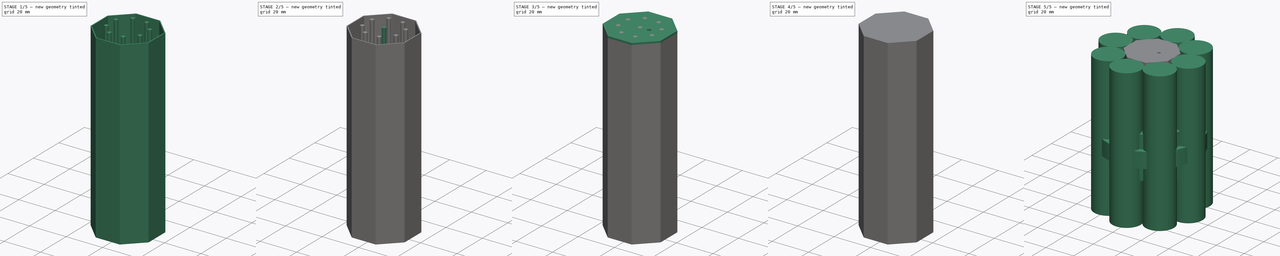
[diagram: build sequence overview — one tinted view per stage of 5, left to right]
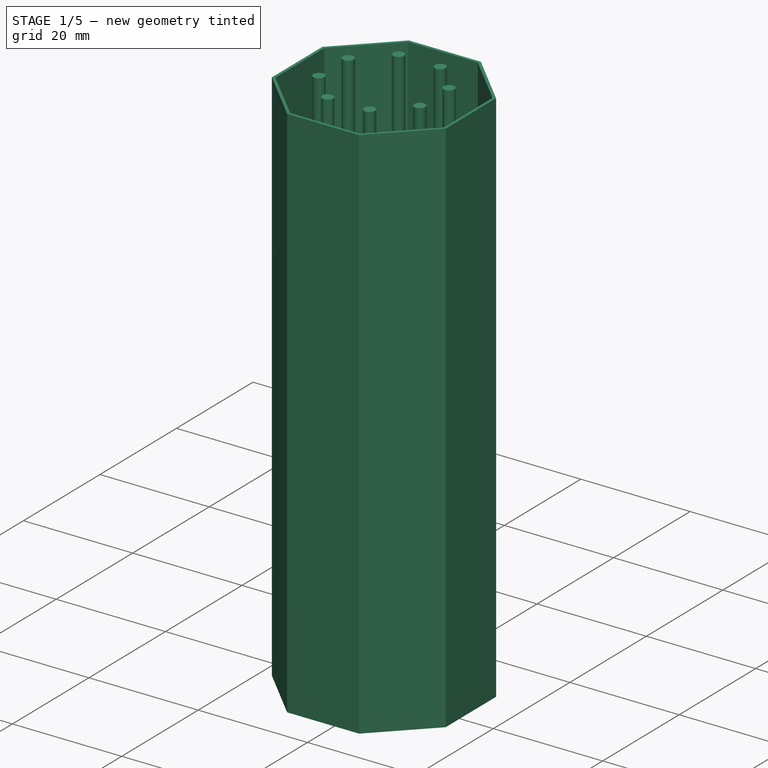
[diagram: stage 1 of 5 — iso view after this stage's code; geometry added in this stage tinted green]
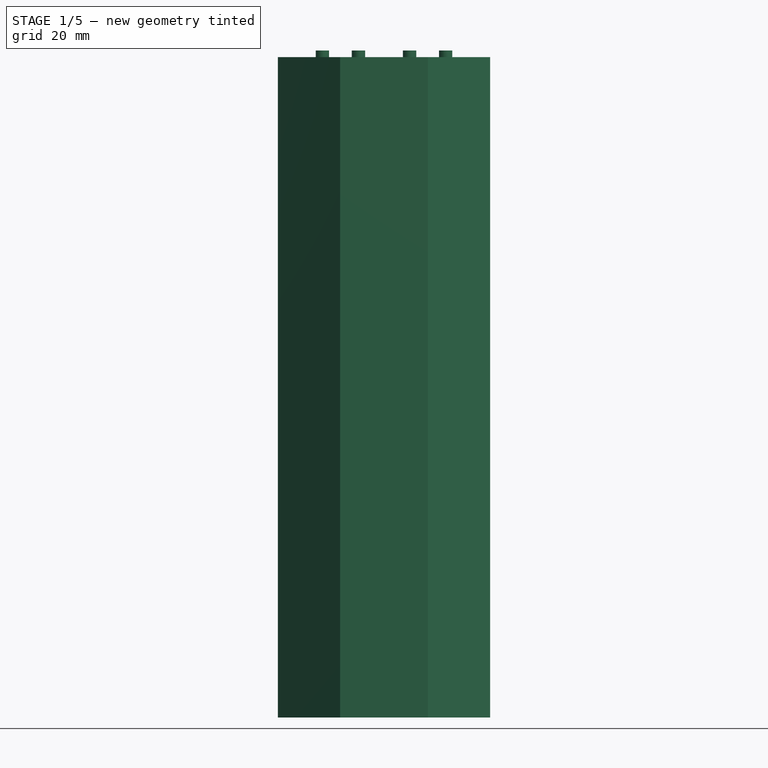
[diagram: stage 1 of 5 — front view after this stage's code; geometry added in this stage tinted green]
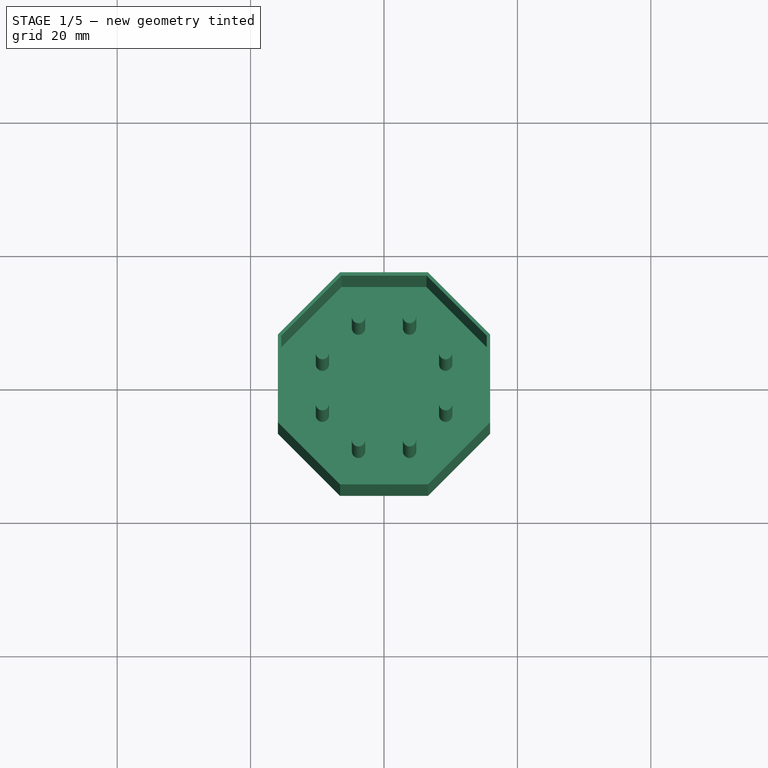
[diagram: stage 1 of 5 — top view after this stage's code; geometry added in this stage tinted green]
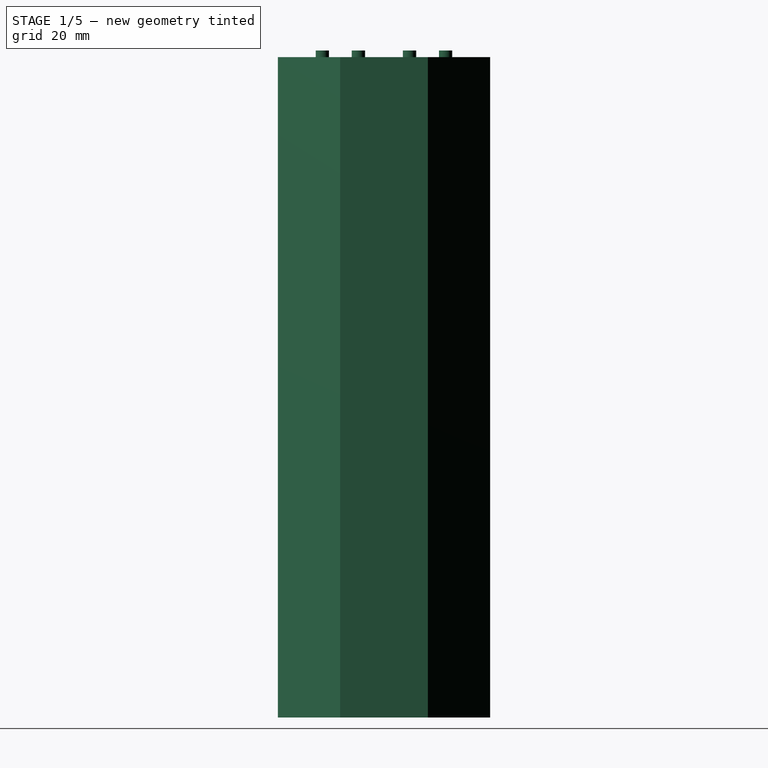
[diagram: stage 1 of 5 — right view after this stage's code; geometry added in this stage tinted green]
FCSTD DOCUMENT  (FreeCAD 0.18R4 (GitTag))
Label: cooler_stage_v0
License: All rights reserved
LicenseURL: http://en.wikipedia.org/wiki/All_rights_reserved
objects: Sketcher::SketchObject×11, PartDesign::Body×10, PartDesign::Pad×9, Part::MultiFuse×5, Part::FeaturePython×3, App::DocumentObjectGroup×3, Part::Feature×3, Spreadsheet::Sheet×1, PartDesign::Revolution×1, PartDesign::Pocket×1
note: 54 computed .brp shape members not serialized (recipe doc carries the construction recipe); baked Part::Feature solids carry a one-line shape summary decoded from their .brp

FEATURE [Sketcher::SketchObject] Sketch003
  MapMode = 5
  expr: Constraints[24] = spread.cooling_out_d - spread.cooling_tube_d * 3 / 2 - spread.tolerance
  sketch-geometry (18):
    g0: LineSegment StartX=15.9 StartY=6.586 StartZ=0 EndX=6.586 EndY=15.9 EndZ=0
    g1: LineSegment StartX=6.586 StartY=15.9 StartZ=0 EndX=-6.586 EndY=15.9 EndZ=0
    g2: LineSegment StartX=-6.586 StartY=15.9 StartZ=0 EndX=-15.9 EndY=6.586 EndZ=0
    g3: LineSegment StartX=-15.9 StartY=6.586 StartZ=0 EndX=-15.9 EndY=-6.586 EndZ=0
    g4: LineSegment StartX=-15.9 StartY=-6.586 StartZ=0 EndX=-6.586 EndY=-15.9 EndZ=0
    g5: LineSegment StartX=-6.586 StartY=-15.9 StartZ=0 EndX=6.586 EndY=-15.9 EndZ=0
    g6: LineSegment StartX=6.586 StartY=-15.9 StartZ=0 EndX=15.9 EndY=-6.586 EndZ=0
    g7: LineSegment StartX=15.9 StartY=-6.586 StartZ=0 EndX=15.9 EndY=6.586 EndZ=0
    g8: Circle [constr] CenterX=0 CenterY=0 CenterZ=0 NormalX=0 NormalY=0 NormalZ=1 AngleXU=0 Radius=17.21
    g9: LineSegment StartX=15.4 StartY=6.37889 StartZ=0 EndX=6.37889 EndY=15.4 EndZ=0
    g10: LineSegment StartX=6.37889 StartY=15.4 StartZ=0 EndX=-6.37889 EndY=15.4 EndZ=0
    g11: LineSegment StartX=-6.37889 StartY=15.4 StartZ=0 EndX=-15.4 EndY=6.37889 EndZ=0
    g12: LineSegment StartX=-15.4 StartY=6.37889 StartZ=0 EndX=-15.4 EndY=-6.37889 EndZ=0
    g13: LineSegment StartX=-15.4 StartY=-6.37889 StartZ=0 EndX=-6.37889 EndY=-15.4 EndZ=0
    g14: LineSegment StartX=-6.37889 StartY=-15.4 StartZ=0 EndX=6.37889 EndY=-15.4 EndZ=0
    g15: LineSegment StartX=6.37889 StartY=-15.4 StartZ=0 EndX=15.4 EndY=-6.37889 EndZ=0
    g16: LineSegment StartX=15.4 StartY=-6.37889 StartZ=0 EndX=15.4 EndY=6.37889 EndZ=0
    g17: Circle [constr] CenterX=0 CenterY=0 CenterZ=0 NormalX=0 NormalY=0 NormalZ=1 AngleXU=0 Radius=16.6688
  constraints (40):
    c: Coincident(g0,g1)
    c: Coincident(g1,g2)
    c: Coincident(g2,g3)
    c: Coincident(g3,g4)
    c: Coincident(g4,g5)
    c: Coincident(g5,g6)
    c: Coincident(g6,g7)
    c: Coincident(g7,g0)
    c: Equal(g0, g1-g7) x7
    c: PointOnObject(g0,g8)
    c: PointOnObject(g1,g8)
    c: PointOnObject(g2,g8)
    c: PointOnObject(g3,g8)
    c: PointOnObject(g4,g8)
    c: PointOnObject(g5,g8)
    c: PointOnObject(g6,g8)
    c: PointOnObject(g7,g8)
    c: Coincident(g8,g-1)
    c: DistanceX(g2,g0) = 31.8
    c: Horizontal(g1)
    c: Coincident(g9,g10)
    c: Coincident(g10,g11)
    c: Coincident(g11,g12)
    c: Coincident(g12,g13)
    c: Coincident(g13,g14)
    c: Coincident(g14,g15)
    c: Coincident(g15,g16)
    c: Coincident(g16,g9)
    c: Equal(g9, g10-g16) x7
    c: PointOnObject(g9,g17)
    c: PointOnObject(g10,g17)
    c: PointOnObject(g11,g17)
    c: PointOnObject(g12,g17)
    c: PointOnObject(g13,g17)
    c: PointOnObject(g14,g17)
    c: PointOnObject(g15,g17)
    c: PointOnObject(g16,g17)
    c: Coincident(g17,g-1)
    c: Horizontal(g10)
    c: DistanceX(g9,g0) = 0.5
FEATURE [PartDesign::Pad] Pad002
  Length = 98
  Length2 = 100
  Profile = -> Sketch003
  Type = 0
  expr: Length = spread.cooling_tube_h - 2 * spread.cooler_walls
FEATURE [PartDesign::Body] Body003  label="cooler_container"
  Group = -> [Sketch003,Pad002]
  Placement = pos=(0,0,1) rot=(0,0,1;0rad)
  Tip = -> Pad002
  expr: Placement.Base.z = spread.cooler_walls
FEATURE [Sketcher::SketchObject] Sketch004
  MapMode = 5
  Support = -> [XY_Plane005]
  expr: Constraints[24] = spread.cooling_out_d - spread.cooling_tube_d * 3 / 2 - spread.tolerance
  sketch-geometry (10):
    g0: LineSegment StartX=15.9 StartY=6.586 StartZ=0 EndX=6.586 EndY=15.9 EndZ=0
    g1: LineSegment StartX=6.586 StartY=15.9 StartZ=0 EndX=-6.586 EndY=15.9 EndZ=0
    g2: LineSegment StartX=-6.586 StartY=15.9 StartZ=0 EndX=-15.9 EndY=6.586 EndZ=0
    g3: LineSegment StartX=-15.9 StartY=6.586 StartZ=0 EndX=-15.9 EndY=-6.586 EndZ=0
    g4: LineSegment StartX=-15.9 StartY=-6.586 StartZ=0 EndX=-6.586 EndY=-15.9 EndZ=0
    g5: LineSegment StartX=-6.586 StartY=-15.9 StartZ=0 EndX=6.586 EndY=-15.9 EndZ=0
    g6: LineSegment StartX=6.586 StartY=-15.9 StartZ=0 EndX=15.9 EndY=-6.586 EndZ=0
    g7: LineSegment StartX=15.9 StartY=-6.586 StartZ=0 EndX=15.9 EndY=6.586 EndZ=0
    g8: Circle [constr] CenterX=0 CenterY=0 CenterZ=0 NormalX=0 NormalY=0 NormalZ=1 AngleXU=0 Radius=17.21
    g9: Circle [constr] CenterX=0 CenterY=0 CenterZ=0 NormalX=0 NormalY=0 NormalZ=1 AngleXU=0 Radius=16.6688
  constraints (21):
    c: Coincident(g0,g1)
    c: Coincident(g1,g2)
    c: Coincident(g2,g3)
    c: Coincident(g3,g4)
    c: Coincident(g4,g5)
    c: Coincident(g5,g6)
    c: Coincident(g6,g7)
    c: Coincident(g7,g0)
    c: Equal(g0, g1-g7) x7
    c: PointOnObject(g0,g8)
    c: PointOnObject(g1,g8)
    c: PointOnObject(g2,g8)
    c: PointOnObject(g3,g8)
    c: PointOnObject(g4,g8)
    c: PointOnObject(g5,g8)
    c: PointOnObject(g6,g8)
    c: PointOnObject(g7,g8)
    c: Coincident(g8,g-1)
    c: DistanceX(g2,g0) = 31.8
    c: Horizontal(g1)
    c: Coincident(g9,g-1)
FEATURE [PartDesign::Pad] Pad003
  Length = 1
  Length2 = 100
  Profile = -> Sketch004
  Type = 0
  expr: Length = spread001.cooler_walls
FEATURE [PartDesign::Body] Body010  label="pillars"
  Group = -> [Sketch009,Pad008]
  Origin = -> Origin009
  Tip = -> Pad008
FEATURE [Part::FeaturePython] Array002  # Draft array (typed FeaturePython)
  Angle = 360
  ArrayType = 1
  Axis = (0,0,1)
  Center = (0,0,0)
  Fuse = false
  IntervalAxis = (0,0,0)
  IntervalX = (1,0,0)
  IntervalY = (0,1,0)
  IntervalZ = (0,0,1)
  NumberPolar = 8
  NumberX = 2
  NumberY = 2
  NumberZ = 1
  Placement = pos=(0,0,0) rot=(0,0,1;0.392699rad)
  expr: Placement.Rotation.Angle = 45 / 2
FEATURE [PartDesign::Body] Body006  label="cooler_container_lid_up"
  Group = -> [Sketch005,Pad004,Sketch010,Pocket]
  Origin = -> Origin006
  Placement = pos=(0,0,99) rot=(0,0,1;0rad)
  Tip = -> Pocket
  expr: Placement.Base.z = spread.cooling_tube_h - spread.cooler_walls
FEATURE [Part::MultiFuse] Fusion002
  Shapes = -> [Body005,Body003]
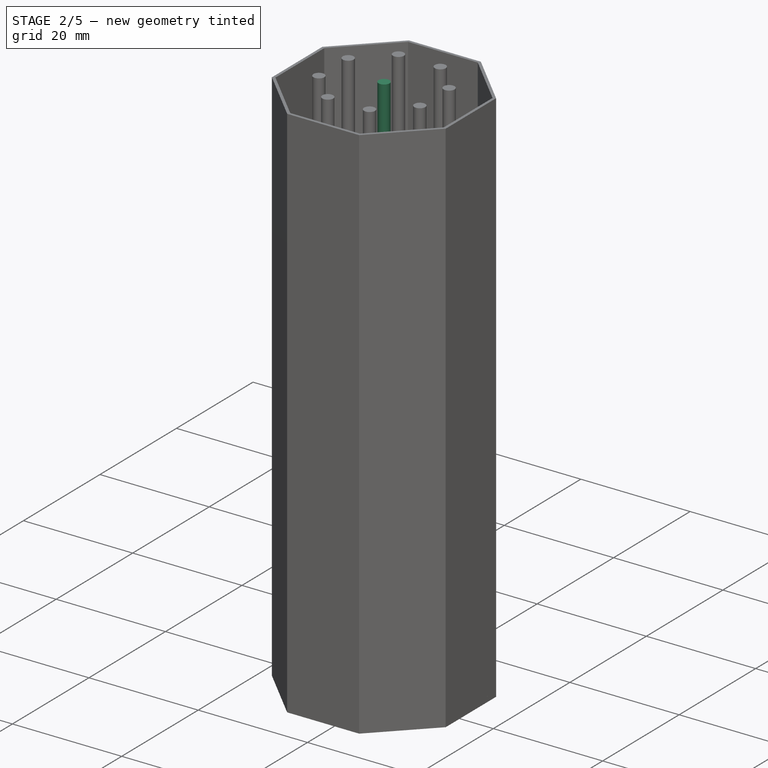
[diagram: stage 2 of 5 — iso view after this stage's code; geometry added in this stage tinted green]
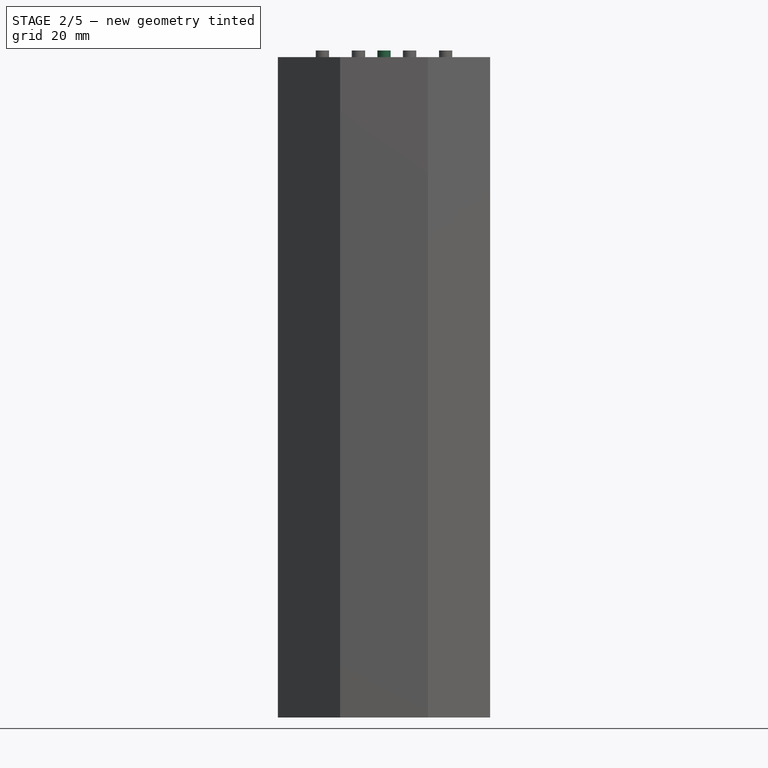
[diagram: stage 2 of 5 — front view after this stage's code; geometry added in this stage tinted green]
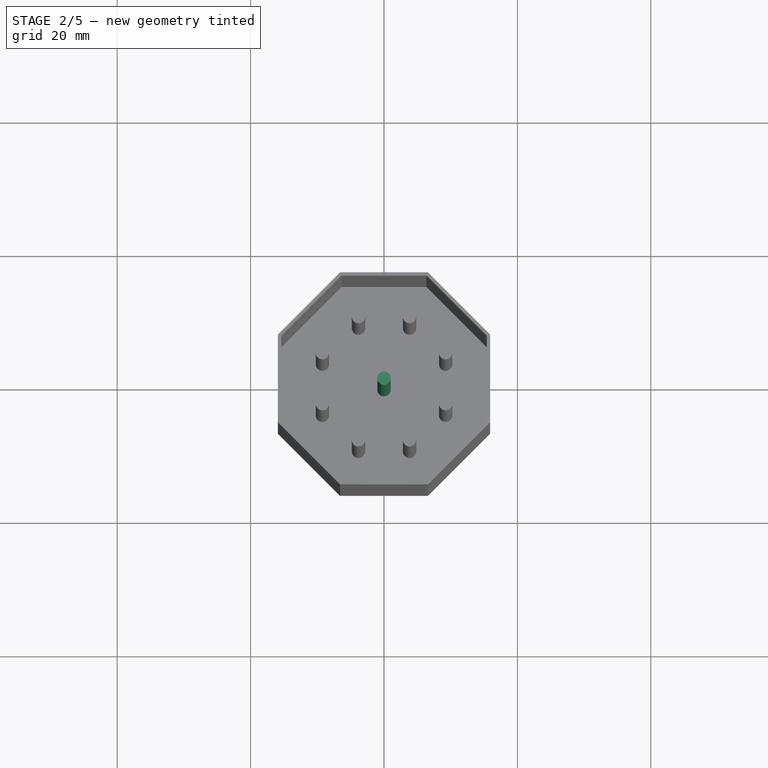
[diagram: stage 2 of 5 — top view after this stage's code; geometry added in this stage tinted green]
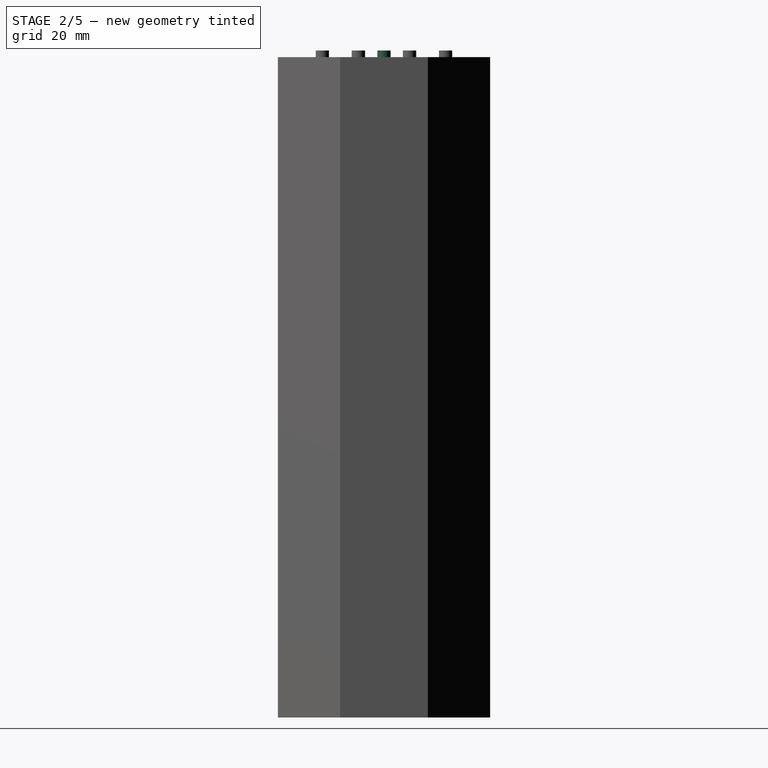
[diagram: stage 2 of 5 — right view after this stage's code; geometry added in this stage tinted green]
FEATURE [PartDesign::Body] Body005  label="cooler_container_lid"
  Group = -> [Sketch004,Pad003]
  Origin = -> Origin005
  Tip = -> Pad003
FEATURE [Sketcher::SketchObject] Sketch005
  MapMode = 5
  Support = -> [XY_Plane006]
  expr: Constraints[24] = spread.cooling_out_d - spread.cooling_tube_d * 3 / 2 - spread.tolerance
  sketch-geometry (10):
    g0: LineSegment StartX=15.9 StartY=6.586 StartZ=0 EndX=6.586 EndY=15.9 EndZ=0
    g1: LineSegment StartX=6.586 StartY=15.9 StartZ=0 EndX=-6.586 EndY=15.9 EndZ=0
    g2: LineSegment StartX=-6.586 StartY=15.9 StartZ=0 EndX=-15.9 EndY=6.586 EndZ=0
    g3: LineSegment StartX=-15.9 StartY=6.586 StartZ=0 EndX=-15.9 EndY=-6.586 EndZ=0
    g4: LineSegment StartX=-15.9 StartY=-6.586 StartZ=0 EndX=-6.586 EndY=-15.9 EndZ=0
    g5: LineSegment StartX=-6.586 StartY=-15.9 StartZ=0 EndX=6.586 EndY=-15.9 EndZ=0
    g6: LineSegment StartX=6.586 StartY=-15.9 StartZ=0 EndX=15.9 EndY=-6.586 EndZ=0
    g7: LineSegment StartX=15.9 StartY=-6.586 StartZ=0 EndX=15.9 EndY=6.586 EndZ=0
    g8: Circle [constr] CenterX=0 CenterY=0 CenterZ=0 NormalX=0 NormalY=0 NormalZ=1 AngleXU=0 Radius=17.21
    g9: Circle [constr] CenterX=0 CenterY=0 CenterZ=0 NormalX=0 NormalY=0 NormalZ=1 AngleXU=0 Radius=16.6688
  constraints (21):
    c: Coincident(g0,g1)
    c: Coincident(g1,g2)
    c: Coincident(g2,g3)
    c: Coincident(g3,g4)
    c: Coincident(g4,g5)
    c: Coincident(g5,g6)
    c: Coincident(g6,g7)
    c: Coincident(g7,g0)
    c: Equal(g0, g1-g7) x7
    c: PointOnObject(g0,g8)
    c: PointOnObject(g1,g8)
    c: PointOnObject(g2,g8)
    c: PointOnObject(g3,g8)
    c: PointOnObject(g4,g8)
    c: PointOnObject(g5,g8)
    c: PointOnObject(g6,g8)
    c: PointOnObject(g7,g8)
    c: Coincident(g8,g-1)
    c: DistanceX(g2,g0) = 31.8
    c: Horizontal(g1)
    c: Coincident(g9,g-1)
FEATURE [PartDesign::Pad] Pad004
  Length = 1
  Length2 = 100
  Profile = -> Sketch005
  Type = 0
  expr: Length = spread.cooler_walls
FEATURE [App::DocumentObjectGroup] Group001  label="cooler_open"
  Group = -> [Body009,Fusion]
FEATURE [Sketcher::SketchObject] Sketch009
  MapMode = 5
  Support = -> [XY_Plane009]
  sketch-geometry (2):
    g0: Circle CenterX=0 CenterY=0 CenterZ=0 NormalX=0 NormalY=0 NormalZ=1 AngleXU=0 Radius=1
    g1: GeomPoint X=0 Y=0 Z=0
  constraints (3):
    c: Diameter(g0) = 2
    c: Coincident(g0,g-1)
    c: Coincident(g1,g-1)
FEATURE [PartDesign::Pad] Pad008
  Length = 100
  Length2 = 100
  Profile = -> Sketch009
  Type = 0
  expr: Length = spread003.cooling_tube_h
FEATURE [Part::MultiFuse] Fusion001  label="pillars001"
  Shapes = -> [Body010,Array002]
FEATURE [Part::MultiFuse] Fusion003
  Shapes = -> [Fusion002,Fusion001]
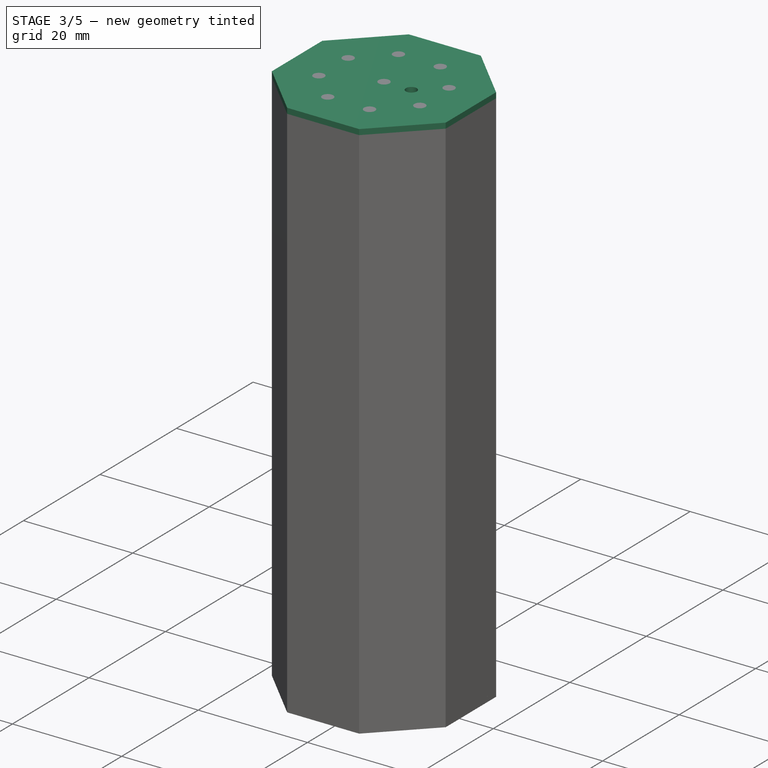
[diagram: stage 3 of 5 — iso view after this stage's code; geometry added in this stage tinted green]
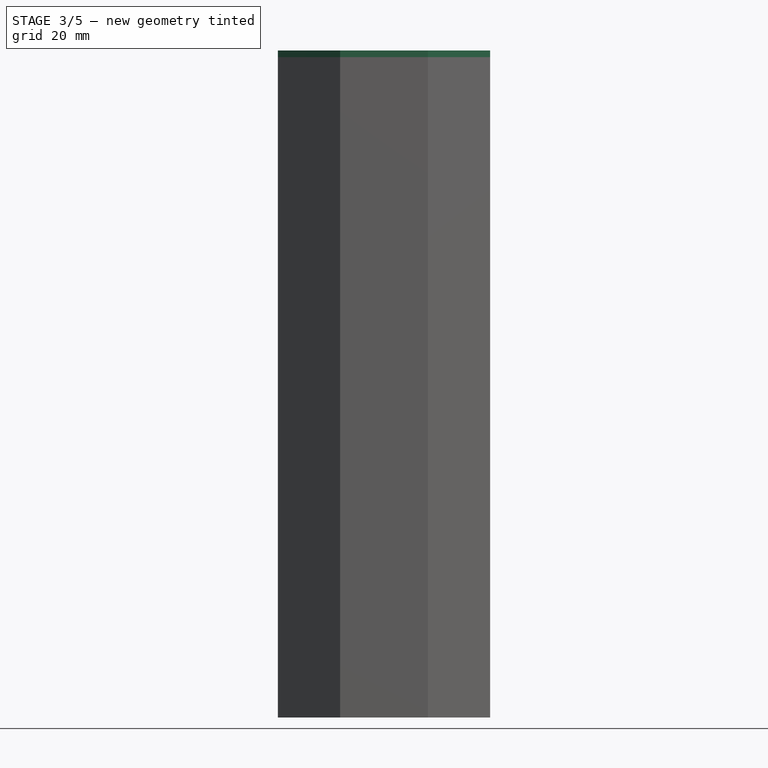
[diagram: stage 3 of 5 — front view after this stage's code; geometry added in this stage tinted green]
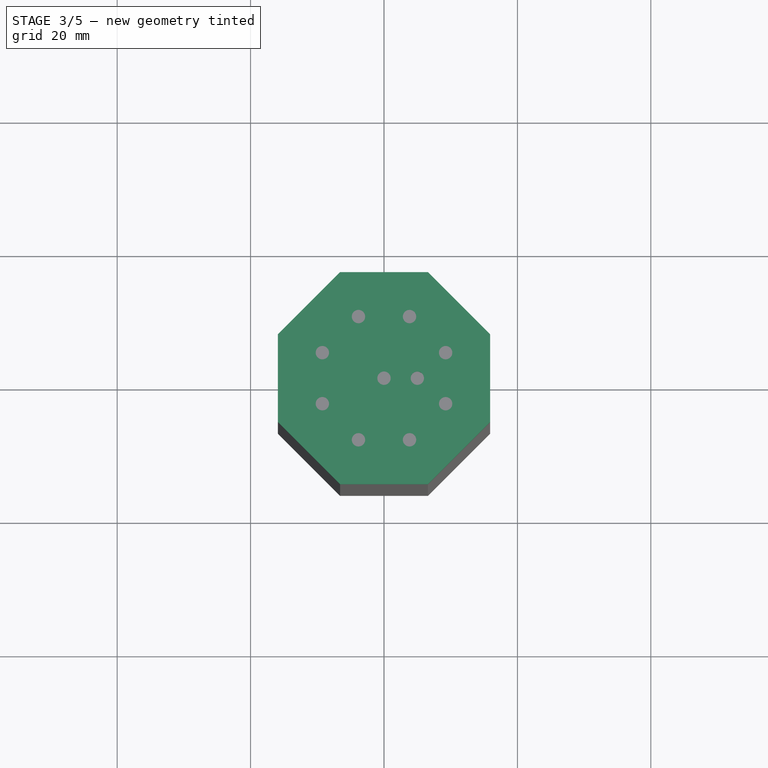
[diagram: stage 3 of 5 — top view after this stage's code; geometry added in this stage tinted green]
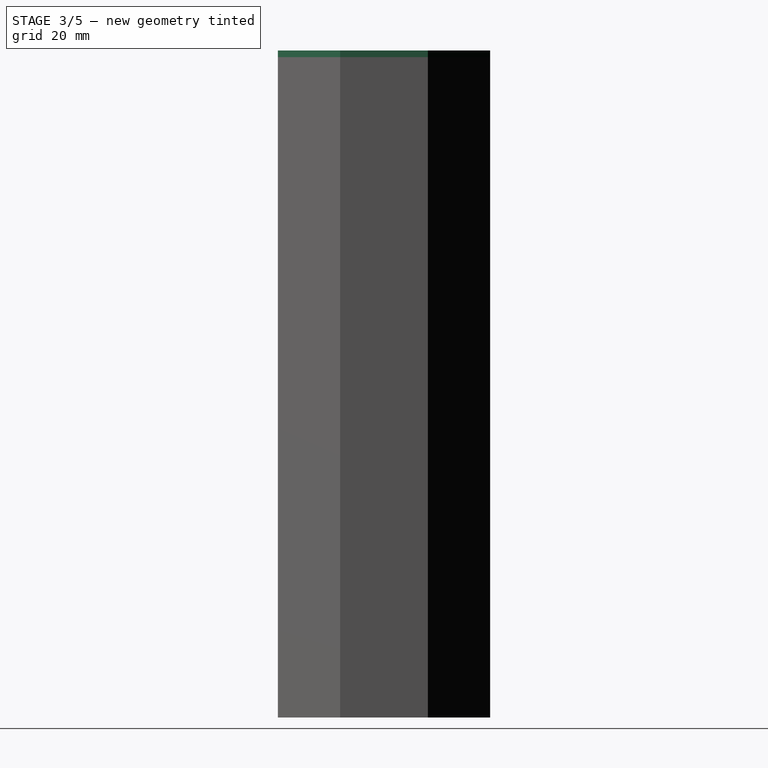
[diagram: stage 3 of 5 — right view after this stage's code; geometry added in this stage tinted green]
FEATURE [PartDesign::Body] Body007  label="cooler_container001"
  Group = -> [Sketch006,Pad005]
  Placement = pos=(0,0,1) rot=(0,0,1;0rad)
  Tip = -> Pad005
  expr: Placement.Base.z = spread.cooler_walls
FEATURE [Sketcher::SketchObject] Sketch007
  MapMode = 5
  Support = -> [XY_Plane007]
  expr: Constraints[24] = spread.cooling_out_d - spread.cooling_tube_d * 3 / 2 - spread.tolerance
  sketch-geometry (10):
    g0: LineSegment StartX=15.9 StartY=6.586 StartZ=0 EndX=6.586 EndY=15.9 EndZ=0
    g1: LineSegment StartX=6.586 StartY=15.9 StartZ=0 EndX=-6.586 EndY=15.9 EndZ=0
    g2: LineSegment StartX=-6.586 StartY=15.9 StartZ=0 EndX=-15.9 EndY=6.586 EndZ=0
    g3: LineSegment StartX=-15.9 StartY=6.586 StartZ=0 EndX=-15.9 EndY=-6.586 EndZ=0
    g4: LineSegment StartX=-15.9 StartY=-6.586 StartZ=0 EndX=-6.586 EndY=-15.9 EndZ=0
    g5: LineSegment StartX=-6.586 StartY=-15.9 StartZ=0 EndX=6.586 EndY=-15.9 EndZ=0
    g6: LineSegment StartX=6.586 StartY=-15.9 StartZ=0 EndX=15.9 EndY=-6.586 EndZ=0
    g7: LineSegment StartX=15.9 StartY=-6.586 StartZ=0 EndX=15.9 EndY=6.586 EndZ=0
    g8: Circle [constr] CenterX=0 CenterY=0 CenterZ=0 NormalX=0 NormalY=0 NormalZ=1 AngleXU=0 Radius=17.21
    g9: Circle [constr] CenterX=0 CenterY=0 CenterZ=0 NormalX=0 NormalY=0 NormalZ=1 AngleXU=0 Radius=16.6688
  constraints (21):
    c: Coincident(g0,g1)
    c: Coincident(g1,g2)
    c: Coincident(g2,g3)
    c: Coincident(g3,g4)
    c: Coincident(g4,g5)
    c: Coincident(g5,g6)
    c: Coincident(g6,g7)
    c: Coincident(g7,g0)
    c: Equal(g0, g1-g7) x7
    c: PointOnObject(g0,g8)
    c: PointOnObject(g1,g8)
    c: PointOnObject(g2,g8)
    c: PointOnObject(g3,g8)
    c: PointOnObject(g4,g8)
    c: PointOnObject(g5,g8)
    c: PointOnObject(g6,g8)
    c: PointOnObject(g7,g8)
    c: Coincident(g8,g-1)
    c: DistanceX(g2,g0) = 31.8
    c: Horizontal(g1)
    c: Coincident(g9,g-1)
FEATURE [PartDesign::Pad] Pad006
  Length = 1
  Length2 = 100
  Profile = -> Sketch007
  Type = 0
  expr: Length = spread003.cooler_walls
FEATURE [Sketcher::SketchObject] Sketch010
  MapMode = 5
  Placement = pos=(0,0,1) rot=(0,0,1;0rad)
  Support = -> [Pad004]
  sketch-geometry (1):
    g0: Circle CenterX=5 CenterY=0 CenterZ=0 NormalX=0 NormalY=0 NormalZ=1 AngleXU=0 Radius=1
  constraints (1):
    c: PointOnObject(g0,g-1)
FEATURE [PartDesign::Pocket] Pocket
  BaseFeature = -> Pad004
  Length = 5
  Length2 = 100
  Profile = -> Sketch010
  Type = 0
FEATURE [Part::MultiFuse] Fusion004  label="cooler_closed001"
  Shapes = -> [Fusion003,Body006]
FEATURE [App::DocumentObjectGroup] Group  label="cooler_closed"
  Group = -> [Fusion004]
FEATURE [Part::Feature] Fusion004001  label="cooler_closed002"
  shape: bbox 31.8 x 31.8 x 100 mm, 64 faces (baked)
FEATURE [Part::Feature] Body009001  label="cooler_container_lid_up002"
  Placement = pos=(0,0,99) rot=(0,0,1;0rad)
  shape: bbox 31.8 x 31.8 x 1 mm, 10 faces (baked)
FEATURE [Part::Feature] Fusion004002  label="cooler_walls_down001"
  shape: bbox 31.8 x 31.8 x 99 mm, 27 faces (baked)
FEATURE [App::DocumentObjectGroup] Group002  label="to_print"
  Group = -> [Fusion004002,Fusion004001,Body009001]
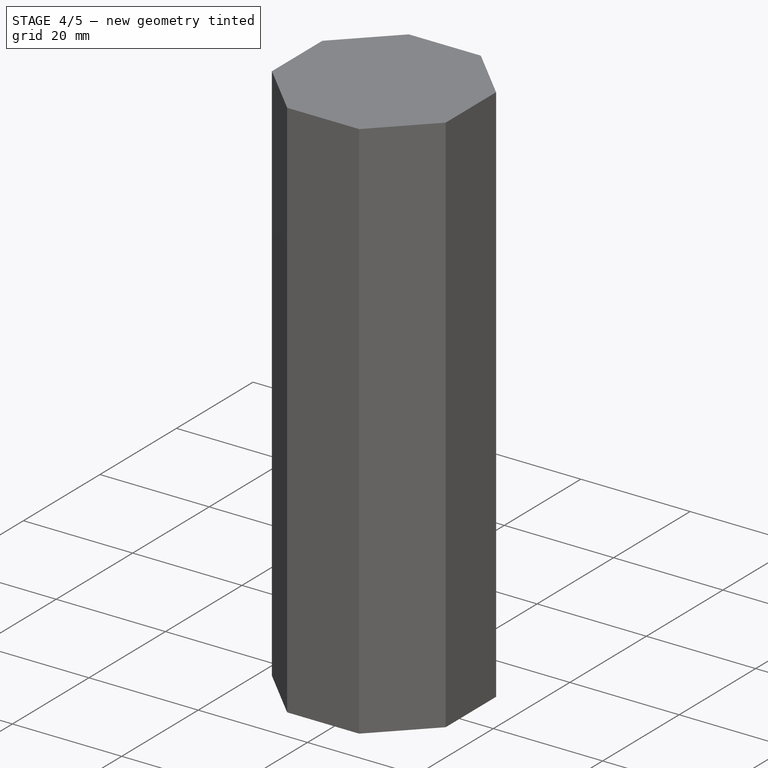
[diagram: stage 4 of 5 — iso view after this stage's code; geometry added in this stage tinted green]
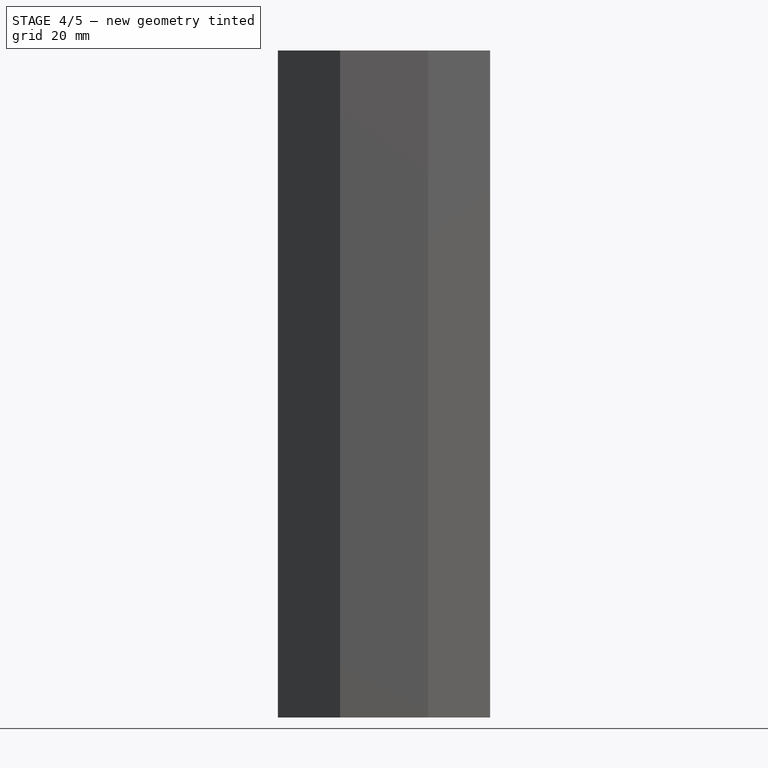
[diagram: stage 4 of 5 — front view after this stage's code; geometry added in this stage tinted green]
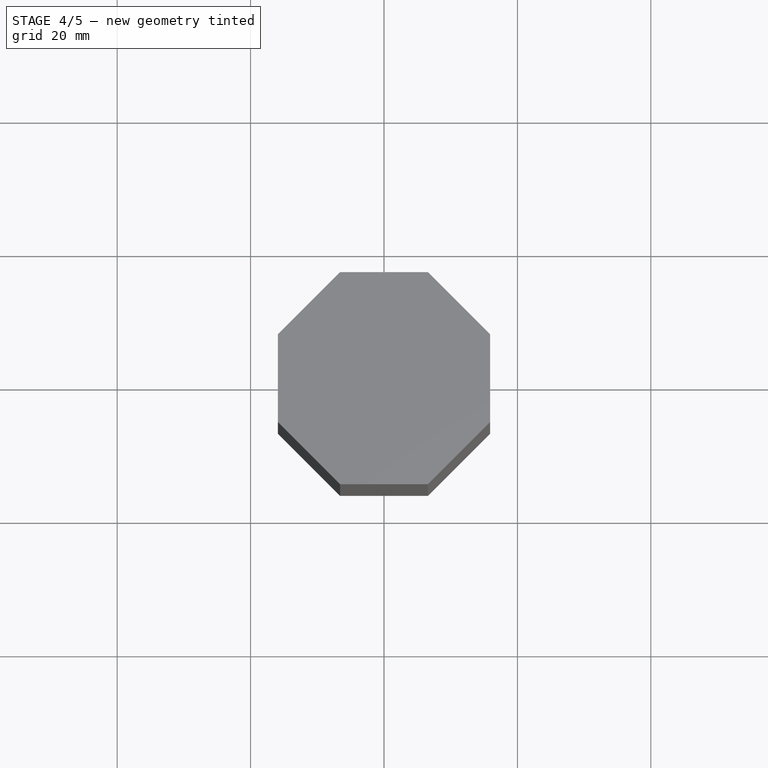
[diagram: stage 4 of 5 — top view after this stage's code; geometry added in this stage tinted green]
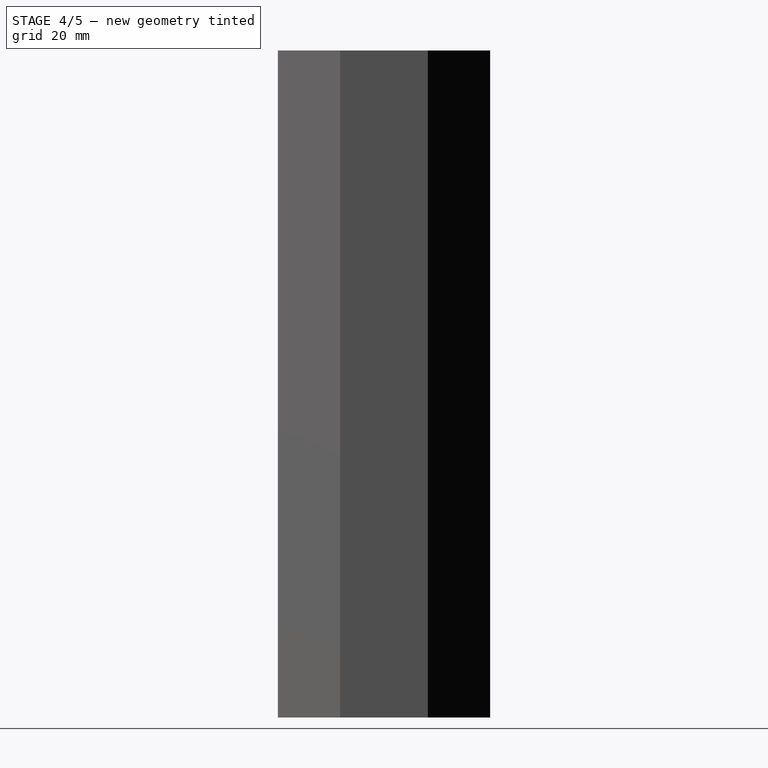
[diagram: stage 4 of 5 — right view after this stage's code; geometry added in this stage tinted green]
FEATURE [PartDesign::Body] Body001  label="Intersurgical"
  Group = -> [Sketch001,Revolution]
  Origin = -> Origin001
  Placement = pos=(0,0,163) rot=(1,0,0;3.14159rad)
  Tip = -> Revolution
FEATURE [Sketcher::SketchObject] Sketch002
  MapMode = 5
  Support = -> [XY_Plane004]
  expr: Constraints[1] = spread003.cooling_tube_d + spread003.tolerance
  sketch-geometry (1):
    g0: Circle CenterX=0 CenterY=0 CenterZ=0 NormalX=0 NormalY=0 NormalZ=1 AngleXU=0 Radius=10.1
  constraints (2):
    c: Coincident(g0,g-1)
    c: Diameter(g0) = 20.2
FEATURE [PartDesign::Pad] Pad001
  Length = 100
  Length2 = 100
  Profile = -> Sketch002
  Type = 0
  expr: Length = spread.cooling_tube_h
FEATURE [Sketcher::SketchObject] Sketch006
  MapMode = 5
  expr: Constraints[24] = spread.cooling_out_d - spread.cooling_tube_d * 3 / 2 - spread.tolerance
  sketch-geometry (18):
    g0: LineSegment StartX=15.9 StartY=6.586 StartZ=0 EndX=6.586 EndY=15.9 EndZ=0
    g1: LineSegment StartX=6.586 StartY=15.9 StartZ=0 EndX=-6.586 EndY=15.9 EndZ=0
    g2: LineSegment StartX=-6.586 StartY=15.9 StartZ=0 EndX=-15.9 EndY=6.586 EndZ=0
    g3: LineSegment StartX=-15.9 StartY=6.586 StartZ=0 EndX=-15.9 EndY=-6.586 EndZ=0
    g4: LineSegment StartX=-15.9 StartY=-6.586 StartZ=0 EndX=-6.586 EndY=-15.9 EndZ=0
    g5: LineSegment StartX=-6.586 StartY=-15.9 StartZ=0 EndX=6.586 EndY=-15.9 EndZ=0
    g6: LineSegment StartX=6.586 StartY=-15.9 StartZ=0 EndX=15.9 EndY=-6.586 EndZ=0
    g7: LineSegment StartX=15.9 StartY=-6.586 StartZ=0 EndX=15.9 EndY=6.586 EndZ=0
    g8: Circle [constr] CenterX=0 CenterY=0 CenterZ=0 NormalX=0 NormalY=0 NormalZ=1 AngleXU=0 Radius=17.21
    g9: LineSegment StartX=15.4 StartY=6.37889 StartZ=0 EndX=6.37889 EndY=15.4 EndZ=0
    g10: LineSegment StartX=6.37889 StartY=15.4 StartZ=0 EndX=-6.37889 EndY=15.4 EndZ=0
    g11: LineSegment StartX=-6.37889 StartY=15.4 StartZ=0 EndX=-15.4 EndY=6.37889 EndZ=0
    g12: LineSegment StartX=-15.4 StartY=6.37889 StartZ=0 EndX=-15.4 EndY=-6.37889 EndZ=0
    g13: LineSegment StartX=-15.4 StartY=-6.37889 StartZ=0 EndX=-6.37889 EndY=-15.4 EndZ=0
    g14: LineSegment StartX=-6.37889 StartY=-15.4 StartZ=0 EndX=6.37889 EndY=-15.4 EndZ=0
    g15: LineSegment StartX=6.37889 StartY=-15.4 StartZ=0 EndX=15.4 EndY=-6.37889 EndZ=0
    g16: LineSegment StartX=15.4 StartY=-6.37889 StartZ=0 EndX=15.4 EndY=6.37889 EndZ=0
    g17: Circle [constr] CenterX=0 CenterY=0 CenterZ=0 NormalX=0 NormalY=0 NormalZ=1 AngleXU=0 Radius=16.6688
  constraints (40):
    c: Coincident(g0,g1)
    c: Coincident(g1,g2)
    c: Coincident(g2,g3)
    c: Coincident(g3,g4)
    c: Coincident(g4,g5)
    c: Coincident(g5,g6)
    c: Coincident(g6,g7)
    c: Coincident(g7,g0)
    c: Equal(g0, g1-g7) x7
    c: PointOnObject(g0,g8)
    c: PointOnObject(g1,g8)
    c: PointOnObject(g2,g8)
    c: PointOnObject(g3,g8)
    c: PointOnObject(g4,g8)
    c: PointOnObject(g5,g8)
    c: PointOnObject(g6,g8)
    c: PointOnObject(g7,g8)
    c: Coincident(g8,g-1)
    c: DistanceX(g2,g0) = 31.8
    c: Horizontal(g1)
    c: Coincident(g9,g10)
    c: Coincident(g10,g11)
    c: Coincident(g11,g12)
    c: Coincident(g12,g13)
    c: Coincident(g13,g14)
    c: Coincident(g14,g15)
    c: Coincident(g15,g16)
    c: Coincident(g16,g9)
    c: Equal(g9, g10-g16) x7
    c: PointOnObject(g9,g17)
    c: PointOnObject(g10,g17)
    c: PointOnObject(g11,g17)
    c: PointOnObject(g12,g17)
    c: PointOnObject(g13,g17)
    c: PointOnObject(g14,g17)
    c: PointOnObject(g15,g17)
    c: PointOnObject(g16,g17)
    c: Coincident(g17,g-1)
    c: Horizontal(g10)
    c: DistanceX(g9,g0) = 0.5
FEATURE [PartDesign::Pad] Pad005
  Length = 98
  Length2 = 100
  Profile = -> Sketch006
  Type = 0
  expr: Length = spread.cooling_tube_h - 2 * spread.cooler_walls
FEATURE [PartDesign::Body] Body008  label="cooler_container_lid001"
  Group = -> [Sketch007,Pad006]
  Origin = -> Origin007
  Tip = -> Pad006
FEATURE [Sketcher::SketchObject] Sketch008
  MapMode = 5
  Support = -> [XY_Plane008]
  expr: Constraints[24] = spread.cooling_out_d - spread.cooling_tube_d * 3 / 2 - spread.tolerance
  sketch-geometry (10):
    g0: LineSegment StartX=15.9 StartY=6.586 StartZ=0 EndX=6.586 EndY=15.9 EndZ=0
    g1: LineSegment StartX=6.586 StartY=15.9 StartZ=0 EndX=-6.586 EndY=15.9 EndZ=0
    g2: LineSegment StartX=-6.586 StartY=15.9 StartZ=0 EndX=-15.9 EndY=6.586 EndZ=0
    g3: LineSegment StartX=-15.9 StartY=6.586 StartZ=0 EndX=-15.9 EndY=-6.586 EndZ=0
    g4: LineSegment StartX=-15.9 StartY=-6.586 StartZ=0 EndX=-6.586 EndY=-15.9 EndZ=0
    g5: LineSegment StartX=-6.586 StartY=-15.9 StartZ=0 EndX=6.586 EndY=-15.9 EndZ=0
    g6: LineSegment StartX=6.586 StartY=-15.9 StartZ=0 EndX=15.9 EndY=-6.586 EndZ=0
    g7: LineSegment StartX=15.9 StartY=-6.586 StartZ=0 EndX=15.9 EndY=6.586 EndZ=0
    g8: Circle [constr] CenterX=0 CenterY=0 CenterZ=0 NormalX=0 NormalY=0 NormalZ=1 AngleXU=0 Radius=17.21
    g9: Circle [constr] CenterX=0 CenterY=0 CenterZ=0 NormalX=0 NormalY=0 NormalZ=1 AngleXU=0 Radius=16.6688
  constraints (21):
    c: Coincident(g0,g1)
    c: Coincident(g1,g2)
    c: Coincident(g2,g3)
    c: Coincident(g3,g4)
    c: Coincident(g4,g5)
    c: Coincident(g5,g6)
    c: Coincident(g6,g7)
    c: Coincident(g7,g0)
    c: Equal(g0, g1-g7) x7
    c: PointOnObject(g0,g8)
    c: PointOnObject(g1,g8)
    c: PointOnObject(g2,g8)
    c: PointOnObject(g3,g8)
    c: PointOnObject(g4,g8)
    c: PointOnObject(g5,g8)
    c: PointOnObject(g6,g8)
    c: PointOnObject(g7,g8)
    c: Coincident(g8,g-1)
    c: DistanceX(g2,g0) = 31.8
    c: Horizontal(g1)
    c: Coincident(g9,g-1)
FEATURE [PartDesign::Pad] Pad007
  Length = 1
  Length2 = 100
  Profile = -> Sketch008
  Type = 0
  expr: Length = spread.cooler_walls
FEATURE [PartDesign::Body] Body009  label="cooler_container_lid_up001"
  Group = -> [Sketch008,Pad007]
  Origin = -> Origin008
  Placement = pos=(0,0,99) rot=(0,0,1;0rad)
  Tip = -> Pad007
  expr: Placement.Base.z = spread.cooling_tube_h - spread.cooler_walls
FEATURE [Part::MultiFuse] Fusion  label="cooler_walls_down"
  Shapes = -> [Body007,Body008]
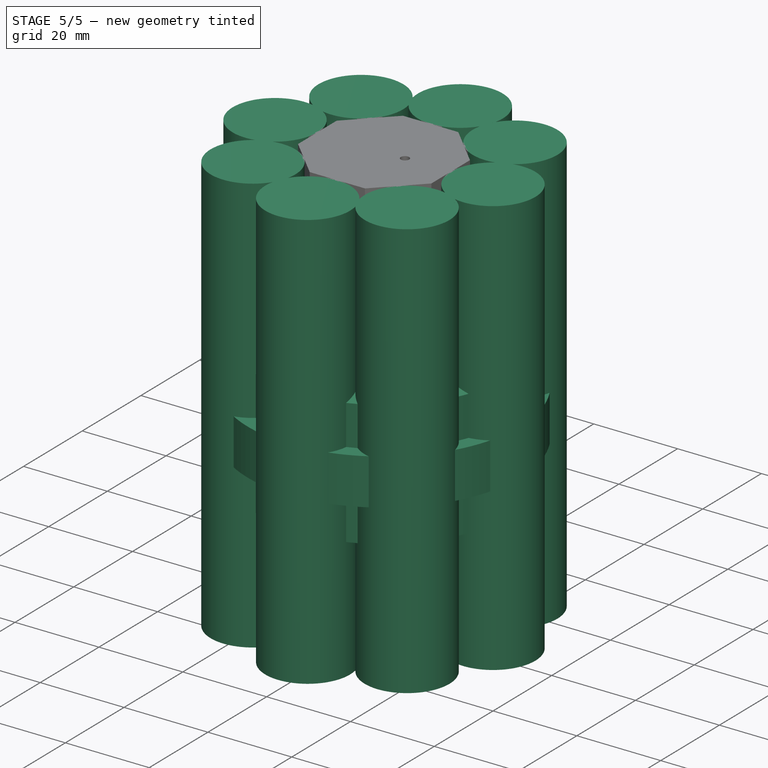
[diagram: stage 5 of 5 — iso view after this stage's code; geometry added in this stage tinted green]
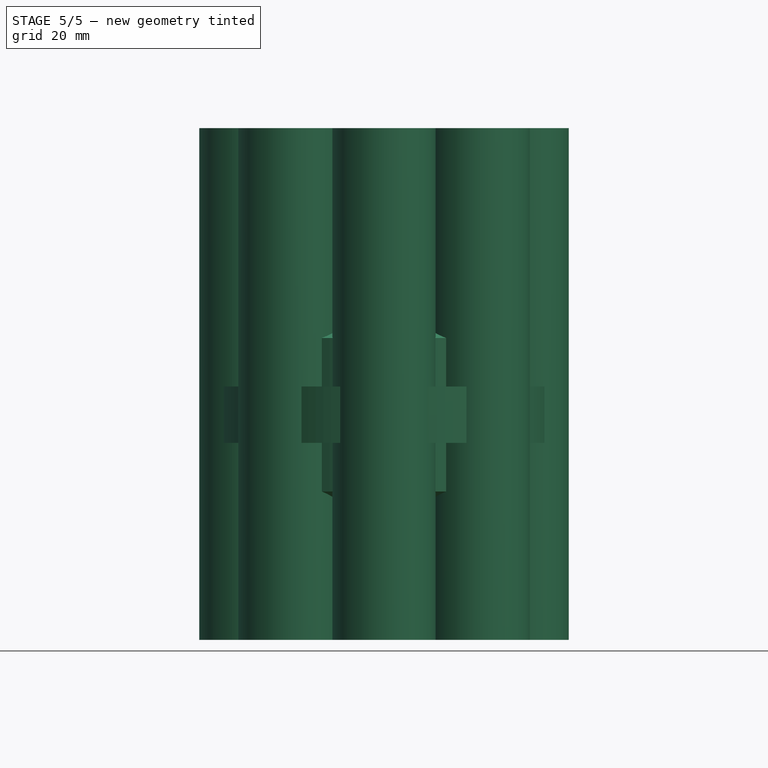
[diagram: stage 5 of 5 — front view after this stage's code; geometry added in this stage tinted green]
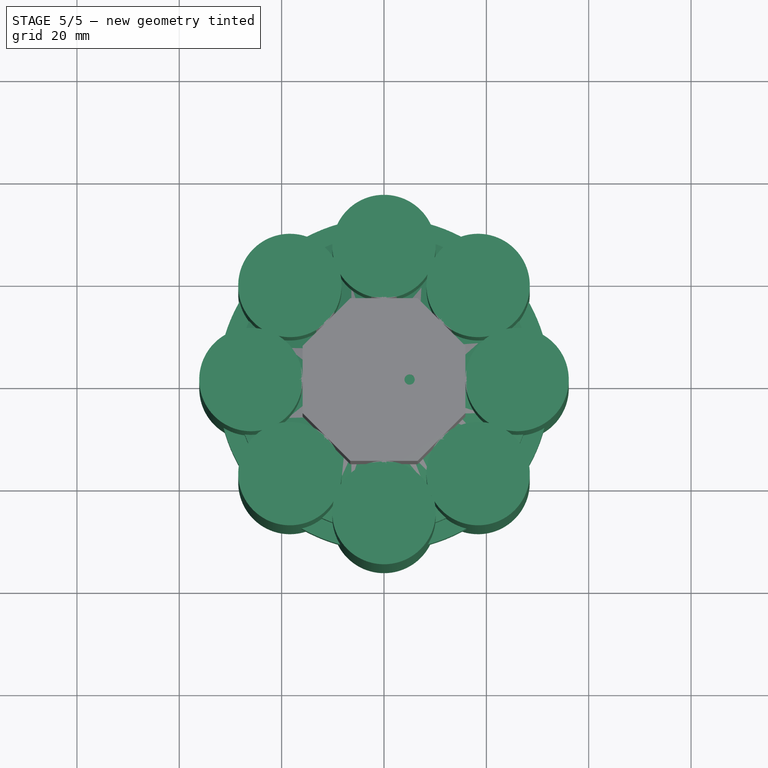
[diagram: stage 5 of 5 — top view after this stage's code; geometry added in this stage tinted green]
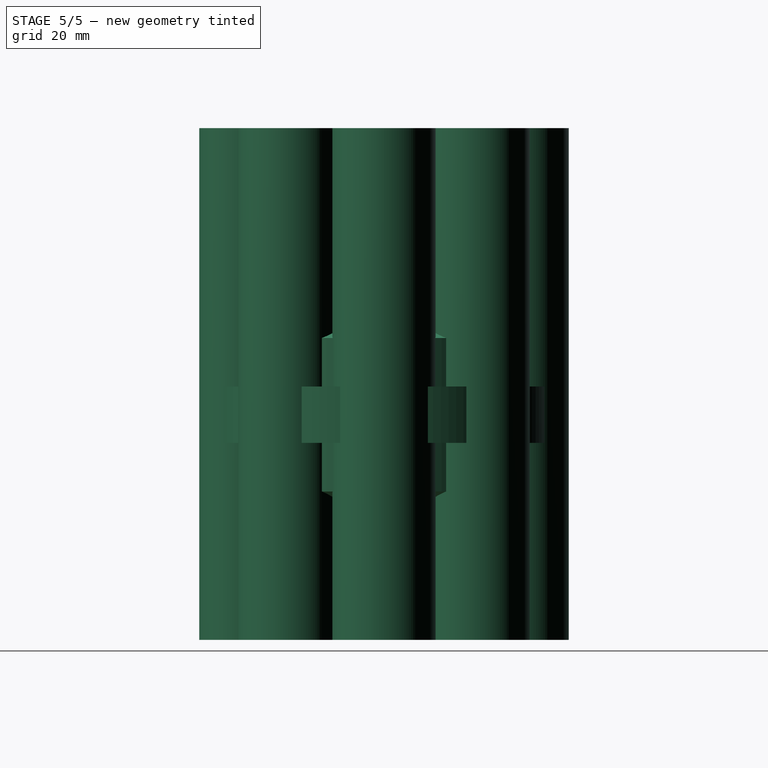
[diagram: stage 5 of 5 — right view after this stage's code; geometry added in this stage tinted green]
FEATURE [Spreadsheet::Sheet] Spreadsheet  label="spread"
  cells = A1=Outer; B1=out_d; C1(out_d)==61mm; B2=fan_d; C2(fan_d)==40mm; B3=fan_h; C3(fan_h)==28mm; B4=inlet_d; C4(inlet_d)==22mm; B5=outlet_h; C5(outlet_h)==25mm; B7=battery_d; C7(battery_d)==19mm; B8=battery_h; C8(battery_h)==67mm; B9=battery_angle; C9(battery_angle)=270; B10=battery_num; C10(battery_num)=6; B12=tolerance; C12(tolerance)==0.2mm; B14=case_gap; C14(case_gap)==6mm; B15=case_walls; C15(case_walls)==1mm; B17=m4_hole_d; C17(m4_hole_d)==4.2mm; B18=m3_hole_d; C18(m3_hole_d)==3.2mm; B19=m3.5_hole_d; C19==3.7mm; B21=cable_via_pos; C21(cable_via_pos)==25mm; B22=cable_via_d; C22(cable_via_d)==4mm; B24=total_d; C24==C1 + (C14 + 2 * C15) * 2; B26=cooling_tube_d; C26(cooling_tube_d)==20mm; B27=cooling_tube_h; C27(cooling_tube_h)==100mm; B28=cooling_out_d; C28(cooling_out_d)==62mm; B30=cooler_walls; C30(cooler_walls)==1mm
FEATURE [Sketcher::SketchObject] Sketch
  MapMode = 5
  Support = -> [XY_Plane]
  expr: Constraints[3] = spread.cooling_tube_d - 1mm
  expr: Constraints[1] = spread.cooling_tube_d
  sketch-geometry (2):
    g0: Circle CenterX=0 CenterY=0 CenterZ=0 NormalX=0 NormalY=0 NormalZ=1 AngleXU=0 Radius=10
    g1: Circle CenterX=0 CenterY=0 CenterZ=0 NormalX=0 NormalY=0 NormalZ=1 AngleXU=0 Radius=9.5
  constraints (4):
    c: Coincident(g0,g-1)
    c: Diameter(g0) = 20
    c: Coincident(g1,g0)
    c: Diameter(g1) = 19
FEATURE [PartDesign::Pad] Pad
  Length = 100
  Length2 = 100
  Profile = -> Sketch
  Type = 0
  expr: Length = spread.cooling_tube_h
FEATURE [PartDesign::Body] Body
  Group = -> [Sketch,Pad]
  Origin = -> Origin
  Placement = pos=(26,0,0) rot=(0,0,1;0rad)
  Tip = -> Pad
  expr: Placement.Base.x = (spread.cooling_out_d - spread.cooling_tube_d / 2) / 2
FEATURE [Part::FeaturePython] Array  label="cooling_tubes"  # Draft array (typed FeaturePython)
  Angle = 360
  ArrayType = 1
  Axis = (0,0,1)
  Base = -> Body
  Center = (0,0,0)
  Fuse = false
  IntervalAxis = (0,0,0)
  IntervalX = (1,0,0)
  IntervalY = (0,1,0)
  IntervalZ = (0,0,1)
  NumberPolar = 8
  NumberX = 2
  NumberY = 2
  NumberZ = 1
FEATURE [Sketcher::SketchObject] Sketch001
  MapMode = 5
  Placement = pos=(0,0,0) rot=(1,0,0;1.5708rad)
  Support = -> [XZ_Plane001]
  sketch-geometry (15):
    g0: LineSegment StartX=0 StartY=0 StartZ=0 EndX=12.5 EndY=0 EndZ=0
    g1: LineSegment StartX=12.5 StartY=0 StartZ=0 EndX=12.8 EndY=23 EndZ=0
    g2: LineSegment StartX=12.8 StartY=23 StartZ=0 EndX=29 EndY=29 EndZ=0
    g3: LineSegment StartX=29 StartY=29 StartZ=0 EndX=29 EndY=38.5 EndZ=0
    g4: LineSegment StartX=29 StartY=38.5 StartZ=0 EndX=32.5 EndY=38.5 EndZ=0
    g5: LineSegment StartX=32.5 StartY=38.5 StartZ=0 EndX=32.5 EndY=49.5 EndZ=0
    g6: LineSegment StartX=32.5 StartY=49.5 StartZ=0 EndX=29 EndY=49.5 EndZ=0
    g7: LineSegment StartX=29 StartY=49.5 StartZ=0 EndX=29 EndY=59 EndZ=0
    g8: LineSegment StartX=29 StartY=59 StartZ=0 EndX=11 EndY=65 EndZ=0
    g9: LineSegment StartX=11 StartY=65 StartZ=0 EndX=11 EndY=88 EndZ=0
    g10: LineSegment StartX=11 StartY=88 StartZ=0 EndX=0 EndY=88 EndZ=0
    g11: LineSegment StartX=0 StartY=88 StartZ=0 EndX=0 EndY=0 EndZ=0
    g12: GeomPoint X=0 Y=23 Z=0
    g13: GeomPoint X=0 Y=23 Z=0
    g14: GeomPoint X=12.8 Y=23 Z=0
  constraints (39):
    c: Coincident(g0,g-1)
    c: Coincident(g1,g0)
    c: Coincident(g2,g1)
    c: Coincident(g3,g2)
    c: Vertical(g3)
    c: Horizontal(g4)
    c: Coincident(g5,g4)
    c: Vertical(g5)
    c: Horizontal(g6)
    c: Coincident(g7,g6)
    c: Vertical(g7)
    c: Coincident(g9,g8)
    c: Vertical(g9)
    c: Coincident(g10,g9)
    c: Horizontal(g10)
    c: Coincident(g11,g0)
    c: Vertical(g11)
    c: Horizontal(g0)
    c: DistanceX(g0,g0) = 12.5
    c: Coincident(g13,g12)
    c: Coincident(g14,g1)
    c: Horizontal(g12,g1)
    c: DistanceX(g12,g1) = 12.8
    c: DistanceX(g10,g10) = 11
    c: Coincident(g10,g11)
    c: PointOnObject(g12,g11)
    c: DistanceY(g1,g1) = 23
    c: DistanceX(g12,g4) = 32.5
    c: Coincident(g4,g3)
    c: Coincident(g7,g8)
    c: Coincident(g5,g6)
    c: DistanceX(g12,g2) = 29
    c: DistanceY(g2,g7) = 30
    c: DistanceY(g11,g11) = 88
    c: DistanceY(g9,g9) = 23
    c: DistanceY(g5,g5) = 11
    c: Equal(g6,g4)
    c: Equal(g7,g3)
    c: DistanceY(g7,g9) = 29
FEATURE [PartDesign::Revolution] Revolution
  Angle = 360
  Axis = (0,2e-16,1)
  Base = (0,0,0)
  Placement = pos=(0,0,0) rot=(1,0,0;1.5708rad)
  Profile = -> Sketch001
  ReferenceAxis = -> Sketch001 [V_Axis]
  Reversed = true
FEATURE [PartDesign::Body] Body004  label="cooling_tubes_hole"
  Group = -> [Sketch002,Pad001]
  Origin = -> Origin004
  Placement = pos=(26,0,0) rot=(0,0,1;0rad)
  Tip = -> Pad001
  expr: Placement.Base.x = (spread.cooling_out_d - spread.cooling_tube_d / 2) / 2
FEATURE [Part::FeaturePython] Array001  label="cooling_tube_holes"  # Draft array (typed FeaturePython)
  Angle = 360
  ArrayType = 1
  Axis = (0,0,1)
  Base = -> Body004
  Center = (0,0,0)
  Fuse = false
  IntervalAxis = (0,0,0)
  IntervalX = (1,0,0)
  IntervalY = (0,1,0)
  IntervalZ = (0,0,1)
  NumberPolar = 8
  NumberX = 2
  NumberY = 2
  NumberZ = 1
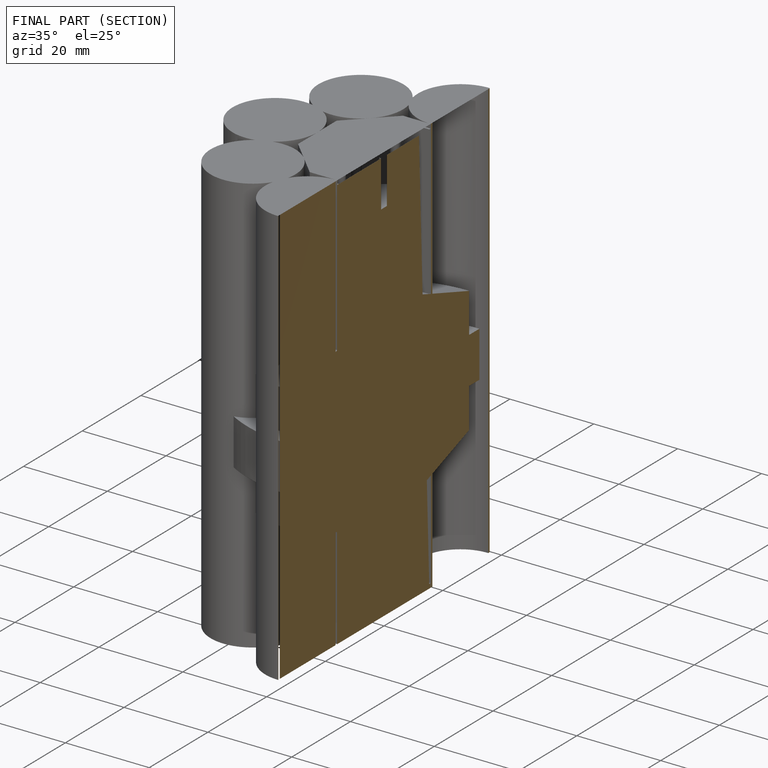
[diagram: finished part — half-section view (interior)]
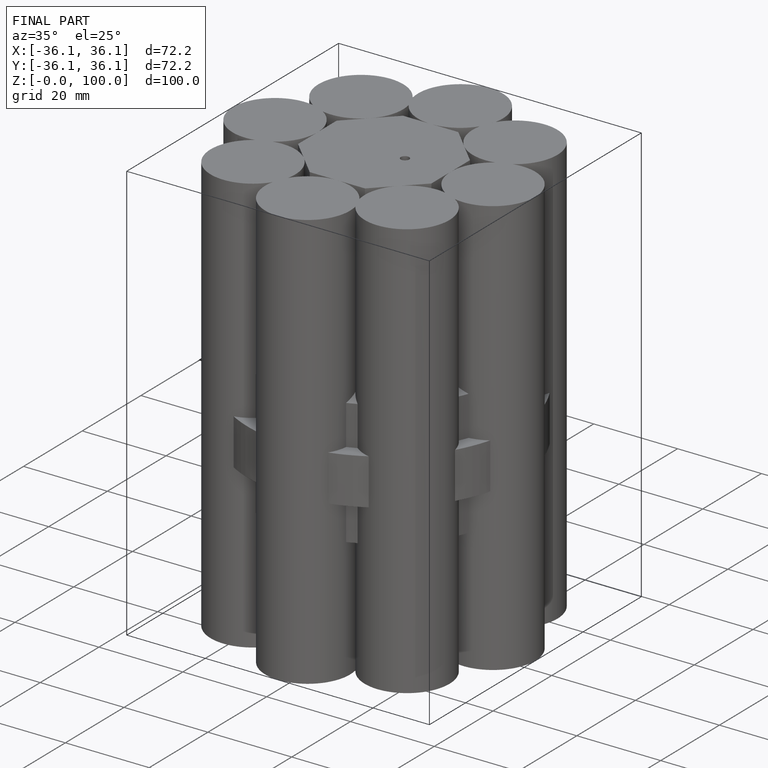
[diagram: finished part — iso view with bounding-box wireframe]
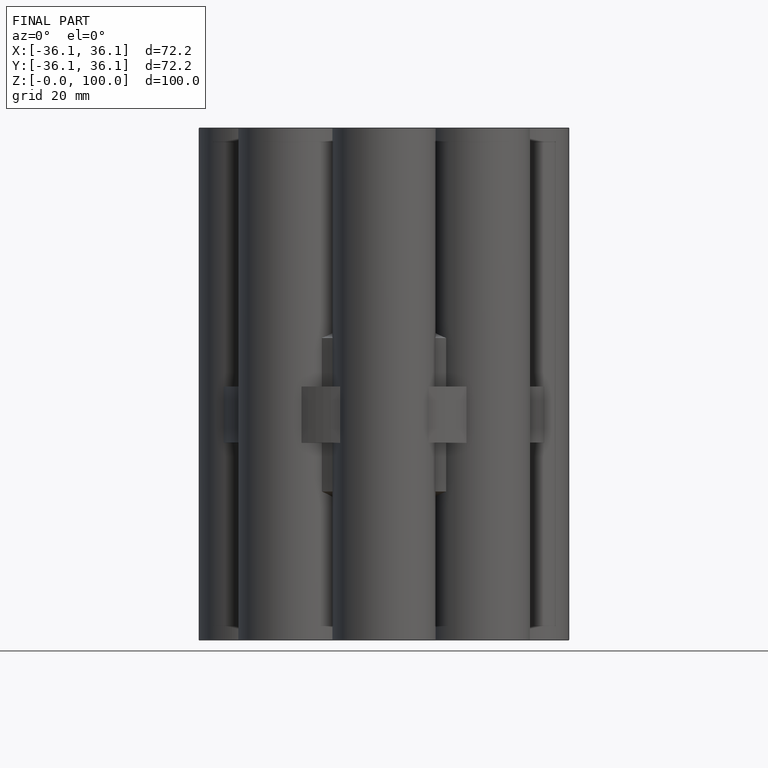
[diagram: finished part — front view with bounding-box wireframe]
